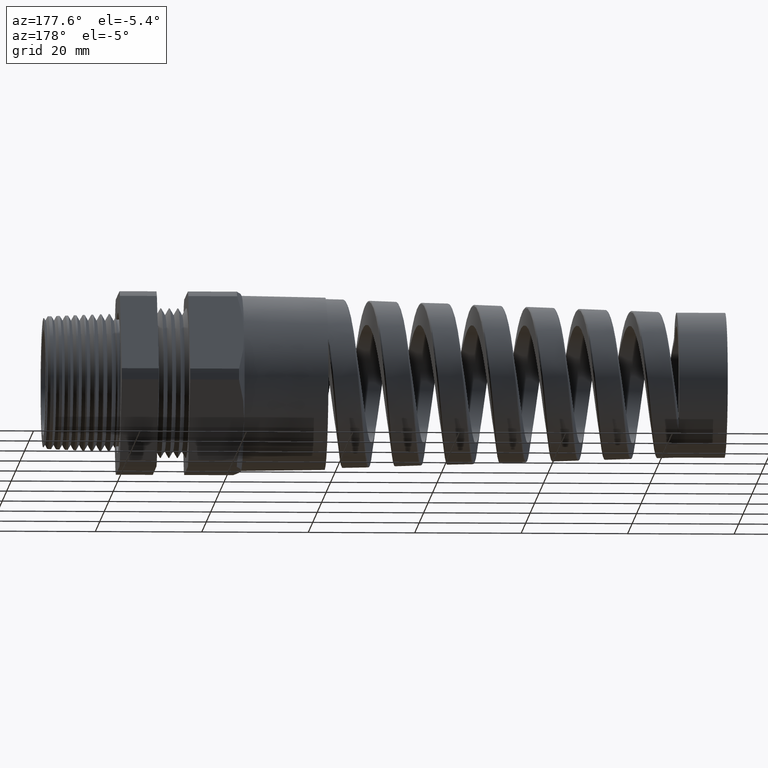
[diagram: clean part render]
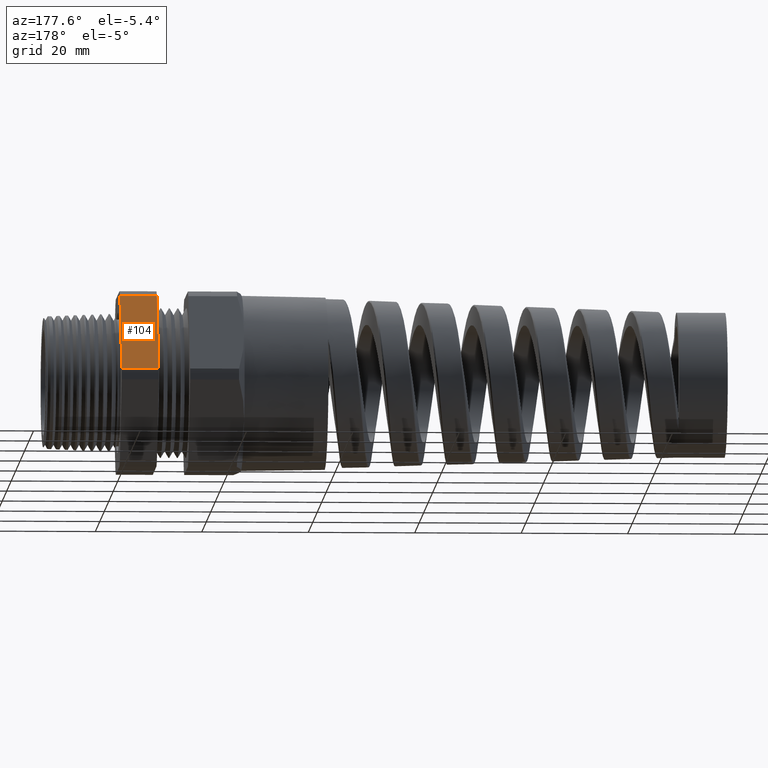
[diagram: same view with one face highlighted and labeled with its STEP entity id]
A machine part, auxiliary view. The second image highlights one B-rep face of the part: STEP entity #104.
In plain terms, the highlighted planar face has unit normal (0, 0.866, 0.5).
Its self-contained STEP definition (entity closure, byte-faithful):
#104 = ADVANCED_FACE ( 'NONE', ( #1696 ), #1695, .T. ) ;
#1520 = VERTEX_POINT ( 'NONE', #9686 ) ;
#1522 = EDGE_CURVE ( 'NONE', #1520, #1523, #9808, .T. ) ;
#1523 = VERTEX_POINT ( 'NONE', #9803 ) ;
#1691 = DIRECTION ( 'NONE',  ( 0.0000000000000000000, -0.5000000000000003300, 0.8660254037844383700 ) ) ;
#1692 = DIRECTION ( 'NONE',  ( 0.0000000000000000000, 0.8660254037844384900, 0.5000000000000004400 ) ) ;
#1693 = CARTESIAN_POINT ( 'NONE',  ( -2.992185896283379200, 0.7268402752278256800, 0.04107571431805962700 ) ) ;
#1694 = AXIS2_PLACEMENT_3D ( 'NONE', #1693, #1692, #1691 ) ;
#1695 = PLANE ( 'NONE',  #1694 ) ;
#1696 = FACE_OUTER_BOUND ( 'NONE', #14067, .T. ) ;
#2493 = EDGE_CURVE ( 'NONE', #2494, #1523, #9886, .T. ) ;
#2494 = VERTEX_POINT ( 'NONE', #9882 ) ;
#2498 = EDGE_CURVE ( 'NONE', #2510, #1520, #9945, .T. ) ;
#2510 = VERTEX_POINT ( 'NONE', #9917 ) ;
#2858 = EDGE_CURVE ( 'NONE', #2510, #2494, #10210, .T. ) ;
#9686 = CARTESIAN_POINT ( 'NONE',  ( 0.0000000000000000000, 0.7268402752278255700, 0.04107571431805956400 ) ) ;
#9803 = CARTESIAN_POINT ( 'NONE',  ( 0.0000000000000000000, 0.3989927496919443200, 0.6089242856819405700 ) ) ;
#9805 = DIRECTION ( 'NONE',  ( 0.0000000000000000000, -0.5000000000000003300, 0.8660254037844383700 ) ) ;
#9806 = VECTOR ( 'NONE', #9805, 39.37007874015748100 ) ;
#9807 = CARTESIAN_POINT ( 'NONE',  ( 0.0000000000000000000, 0.7268402752278256800, 0.04107571431805962700 ) ) ;
#9808 = LINE ( 'NONE', #9807, #9806 ) ;
#9882 = CARTESIAN_POINT ( 'NONE',  ( -0.2736318407960202100, 0.3989927496919443200, 0.6089242856819405700 ) ) ;
#9883 = DIRECTION ( 'NONE',  ( 1.000000000000000000, 0.0000000000000000000, 0.0000000000000000000 ) ) ;
#9884 = VECTOR ( 'NONE', #9883, 39.37007874015748100 ) ;
#9885 = CARTESIAN_POINT ( 'NONE',  ( -2.992185896283379200, 0.3989927496919443200, 0.6089242856819405700 ) ) ;
#9886 = LINE ( 'NONE', #9885, #9884 ) ;
#9917 = CARTESIAN_POINT ( 'NONE',  ( -0.2736318407960199300, 0.7268402752278256800, 0.04107571431805986200 ) ) ;
#9942 = DIRECTION ( 'NONE',  ( 1.000000000000000000, 0.0000000000000000000, 0.0000000000000000000 ) ) ;
#9943 = VECTOR ( 'NONE', #9942, 39.37007874015748100 ) ;
#9944 = CARTESIAN_POINT ( 'NONE',  ( -2.992185896283379200, 0.7268402752278255700, 0.04107571431805956400 ) ) ;
#9945 = LINE ( 'NONE', #9944, #9943 ) ;
#10207 = DIRECTION ( 'NONE',  ( 0.0000000000000000000, -0.5000000000000003300, 0.8660254037844383700 ) ) ;
#10208 = VECTOR ( 'NONE', #10207, 39.37007874015748100 ) ;
#10209 = CARTESIAN_POINT ( 'NONE',  ( -0.2736318407960199300, 0.7020415124598852200, 0.08402843139697996300 ) ) ;
#10210 = LINE ( 'NONE', #10209, #10208 ) ;
#14051 = ORIENTED_EDGE ( 'NONE', *, *, #1522, .F. ) ;
#14054 = ORIENTED_EDGE ( 'NONE', *, *, #2493, .T. ) ;
#14063 = ORIENTED_EDGE ( 'NONE', *, *, #2858, .T. ) ;
#14067 = EDGE_LOOP ( 'NONE', ( #14063, #14054, #14051, #14076 ) ) ;
#14076 = ORIENTED_EDGE ( 'NONE', *, *, #2498, .F. ) ;